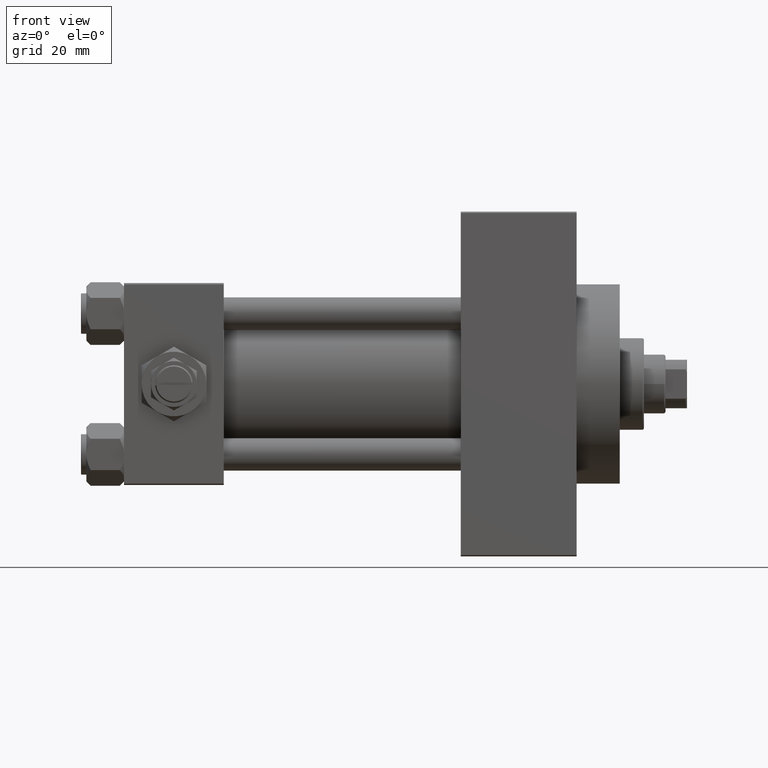
[diagram: clean part render]
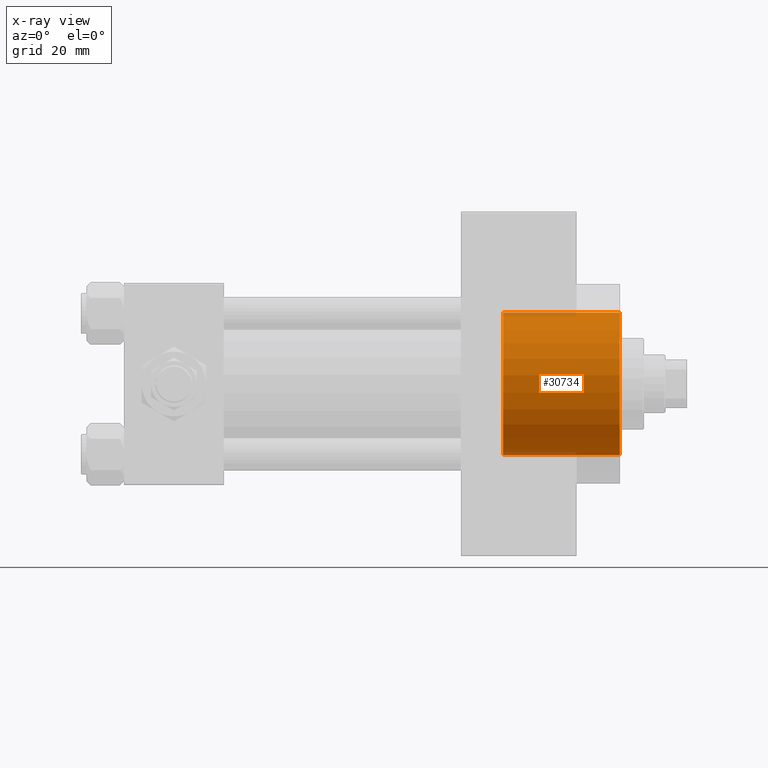
[diagram: x-ray — body ghosted, one internal face saturated and labeled with its STEP entity id]
A machine part, front view, then the same camera in x-ray: the body is ghosted and one INTERNAL B-rep face — a face not visible from any outside direction — is saturated and labeled: STEP entity #30734.
In plain terms, the highlighted cylindrical surface (partial cylindrical patch) has radius 26.5 mm, axis along (1, 0, 0).
Its self-contained STEP definition (entity closure, byte-faithful):
#814 = DIRECTION ( 'NONE',  ( 1.000000000000000000, -0.000000000000000000, -0.000000000000000000 ) ) ;
#2159 = CIRCLE ( 'NONE', #21792, 26.50000000000000355 ) ;
#2928 = DIRECTION ( 'NONE',  ( 0.000000000000000000, 0.000000000000000000, -1.000000000000000000 ) ) ;
#8428 = DIRECTION ( 'NONE',  ( 0.000000000000000000, 0.000000000000000000, -1.000000000000000000 ) ) ;
#8586 = DIRECTION ( 'NONE',  ( 1.000000000000000000, -0.000000000000000000, -0.000000000000000000 ) ) ;
#12106 = CARTESIAN_POINT ( 'NONE',  ( 184.0000000000000000, 0.000000000000000000, 0.000000000000000000 ) ) ;
#12502 = EDGE_CURVE ( 'NONE', #29050, #24829, #19285, .T. ) ;
#12508 = CARTESIAN_POINT ( 'NONE',  ( 140.7400000000000091, 0.000000000000000000, -26.50000000000000355 ) ) ;
#15276 = EDGE_CURVE ( 'NONE', #24829, #23873, #2159, .T. ) ;
#15529 = ORIENTED_EDGE ( 'NONE', *, *, #15276, .T. ) ;
#15838 = ORIENTED_EDGE ( 'NONE', *, *, #22658, .F. ) ;
#17693 = CARTESIAN_POINT ( 'NONE',  ( 140.7400000000000091, 0.000000000000000000, 0.000000000000000000 ) ) ;
#18308 = CARTESIAN_POINT ( 'NONE',  ( 140.7400000000000091, 0.000000000000000000, -26.50000000000000355 ) ) ;
#18313 = DIRECTION ( 'NONE',  ( 1.000000000000000000, -0.000000000000000000, -0.000000000000000000 ) ) ;
#19285 = LINE ( 'NONE', #42622, #44481 ) ;
#20833 = AXIS2_PLACEMENT_3D ( 'NONE', #17693, #43509, #2928 ) ;
#21792 = AXIS2_PLACEMENT_3D ( 'NONE', #12106, #27124, #8428 ) ;
#22658 = EDGE_CURVE ( 'NONE', #26034, #23873, #46221, .T. ) ;
#23873 = VERTEX_POINT ( 'NONE', #29910 ) ;
#24829 = VERTEX_POINT ( 'NONE', #48633 ) ;
#25635 = EDGE_LOOP ( 'NONE', ( #30507, #44181, #15529, #15838 ) ) ;
#26034 = VERTEX_POINT ( 'NONE', #18308 ) ;
#27124 = DIRECTION ( 'NONE',  ( 1.000000000000000000, 0.000000000000000000, 0.000000000000000000 ) ) ;
#29050 = VERTEX_POINT ( 'NONE', #33485 ) ;
#29910 = CARTESIAN_POINT ( 'NONE',  ( 184.0000000000000000, 0.000000000000000000, -26.50000000000000355 ) ) ;
#30110 = CARTESIAN_POINT ( 'NONE',  ( 140.7400000000000091, 0.000000000000000000, 0.000000000000000000 ) ) ;
#30507 = ORIENTED_EDGE ( 'NONE', *, *, #46564, .F. ) ;
#30734 = ADVANCED_FACE ( 'NONE', ( #37737 ), #37244, .F. ) ;
#32839 = DIRECTION ( 'NONE',  ( 0.000000000000000000, 0.000000000000000000, -1.000000000000000000 ) ) ;
#33485 = CARTESIAN_POINT ( 'NONE',  ( 140.7400000000000091, 3.245314017740486554E-15, 26.50000000000000355 ) ) ;
#37244 = CYLINDRICAL_SURFACE ( 'NONE', #38580, 26.50000000000000355 ) ;
#37737 = FACE_OUTER_BOUND ( 'NONE', #25635, .T. ) ;
#38580 = AXIS2_PLACEMENT_3D ( 'NONE', #30110, #18313, #32839 ) ;
#42622 = CARTESIAN_POINT ( 'NONE',  ( 140.7400000000000091, 3.245314017740486554E-15, 26.50000000000000355 ) ) ;
#43123 = VECTOR ( 'NONE', #8586, 1000.000000000000000 ) ;
#43509 = DIRECTION ( 'NONE',  ( 1.000000000000000000, 0.000000000000000000, 0.000000000000000000 ) ) ;
#44181 = ORIENTED_EDGE ( 'NONE', *, *, #12502, .T. ) ;
#44481 = VECTOR ( 'NONE', #814, 1000.000000000000000 ) ;
#46221 = LINE ( 'NONE', #12508, #43123 ) ;
#46564 = EDGE_CURVE ( 'NONE', #29050, #26034, #48368, .T. ) ;
#48368 = CIRCLE ( 'NONE', #20833, 26.50000000000000355 ) ;
#48633 = CARTESIAN_POINT ( 'NONE',  ( 184.0000000000000000, 3.245314017740486554E-15, 26.50000000000000355 ) ) ;